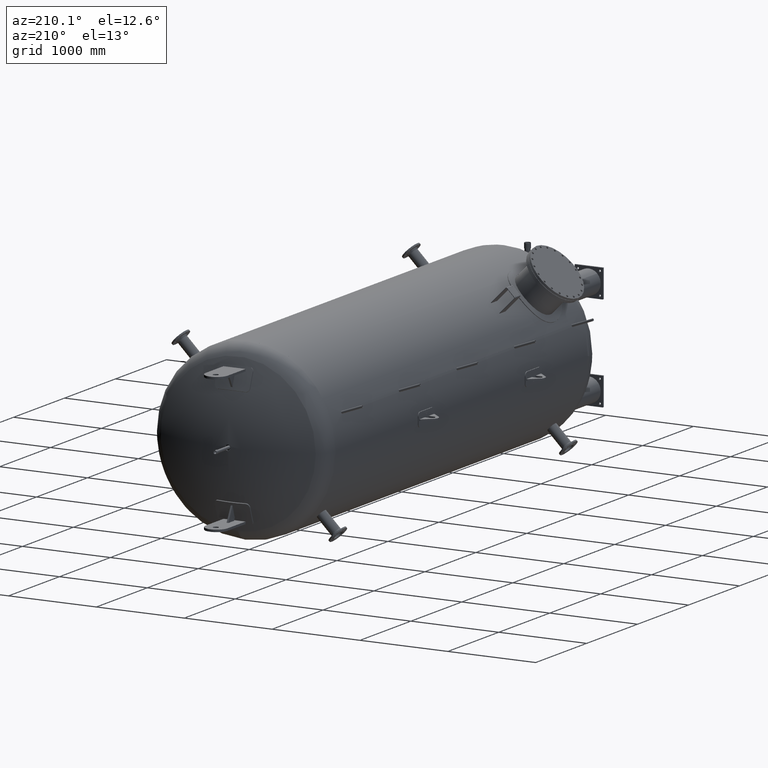
[diagram: clean part render]
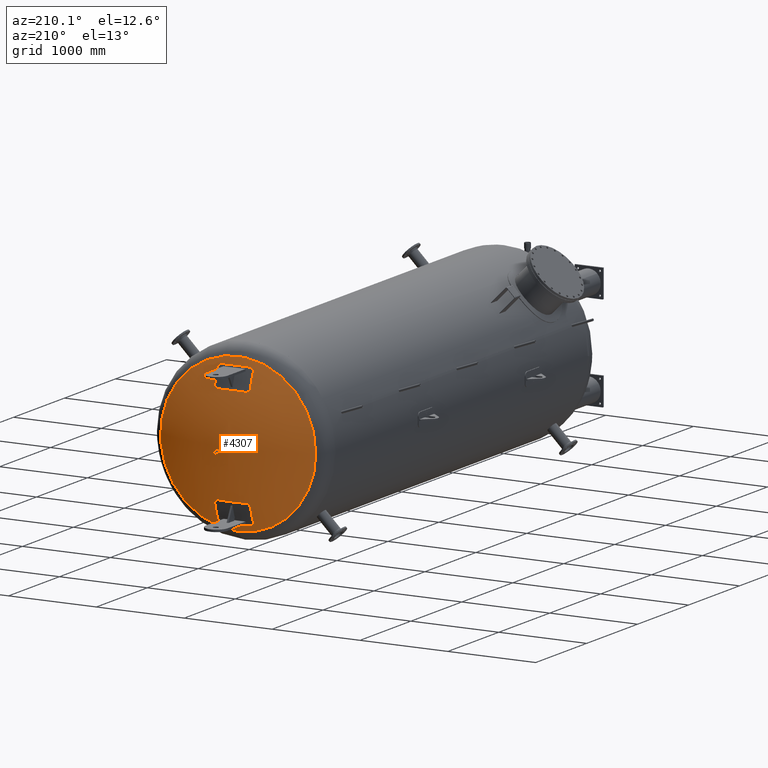
[diagram: same view with one face highlighted and labeled with its STEP entity id]
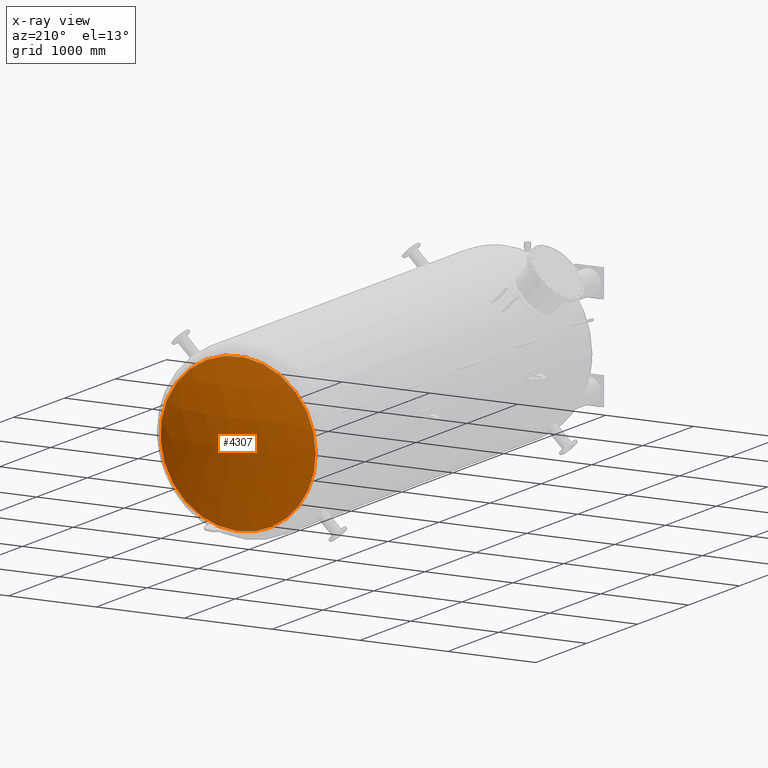
[diagram: x-ray of the same camera — body ghosted, the highlighted face saturated]
A machine part, auxiliary view. The second image highlights one B-rep face of the part: STEP entity #4307.
The next image is the same camera in x-ray: the body ghosted, the highlighted face saturated — about 0% of this face is hidden behind the body in this view.
In plain terms, the highlighted spherical surface has radius 2007.8 mm.
Its self-contained STEP definition (entity closure, byte-faithful):
#405=FACE_BOUND('',#830,.T.);
#577=SPHERICAL_SURFACE('',#5000,2007.8);
#595=FACE_OUTER_BOUND('',#829,.T.);
#829=EDGE_LOOP('',(#2953,#2954));
#830=EDGE_LOOP('',(#2955));
#1689=CIRCLE('',#4991,30.15);
#1691=CIRCLE('',#4994,883.655088888889);
#1692=CIRCLE('',#4995,883.655088888889);
#1962=VERTEX_POINT('',#6938);
#1964=VERTEX_POINT('',#6944);
#1965=VERTEX_POINT('',#6945);
#2363=EDGE_CURVE('',#1962,#1962,#1689,.T.);
#2366=EDGE_CURVE('',#1964,#1965,#1691,.T.);
#2367=EDGE_CURVE('',#1965,#1964,#1692,.T.);
#2953=ORIENTED_EDGE('',*,*,#2366,.T.);
#2954=ORIENTED_EDGE('',*,*,#2367,.T.);
#2955=ORIENTED_EDGE('',*,*,#2363,.T.);
#4307=ADVANCED_FACE('',(#595,#405),#577,.T.);
#4991=AXIS2_PLACEMENT_3D('',#6939,#5567,#5568);
#4994=AXIS2_PLACEMENT_3D('',#6946,#5574,#5575);
#4995=AXIS2_PLACEMENT_3D('',#6947,#5576,#5577);
#5000=AXIS2_PLACEMENT_3D('',#6955,#5586,#5587);
#5567=DIRECTION('center_axis',(0.,-1.,0.));
#5568=DIRECTION('ref_axis',(1.,0.,0.));
#5574=DIRECTION('center_axis',(-5.38848631719391E-16,1.,0.));
#5575=DIRECTION('ref_axis',(-1.,-5.38848479725296E-16,0.));
#5576=DIRECTION('center_axis',(-5.38848631719391E-16,1.,0.));
#5577=DIRECTION('ref_axis',(-1.,-5.38848479725296E-16,0.));
#5586=DIRECTION('center_axis',(6.12323399573677E-17,0.,1.));
#5587=DIRECTION('ref_axis',(1.,0.,0.));
#6938=CARTESIAN_POINT('',(-30.15,422.22461446598,-3.69231009942927E-15));
#6939=CARTESIAN_POINT('Origin',(0.,422.22461446598,0.));
#6944=CARTESIAN_POINT('',(-883.655088888889,217.5416023053,0.));
#6945=CARTESIAN_POINT('',(-2.087617168593E-13,217.541602305301,-883.655088888889));
#6946=CARTESIAN_POINT('Origin',(-9.94584263502524E-14,217.541602305301,
0.));
#6947=CARTESIAN_POINT('Origin',(-9.94584263502524E-14,217.541602305301,
0.));
#6955=CARTESIAN_POINT('Origin',(8.72026707841707E-13,-1585.349,0.));